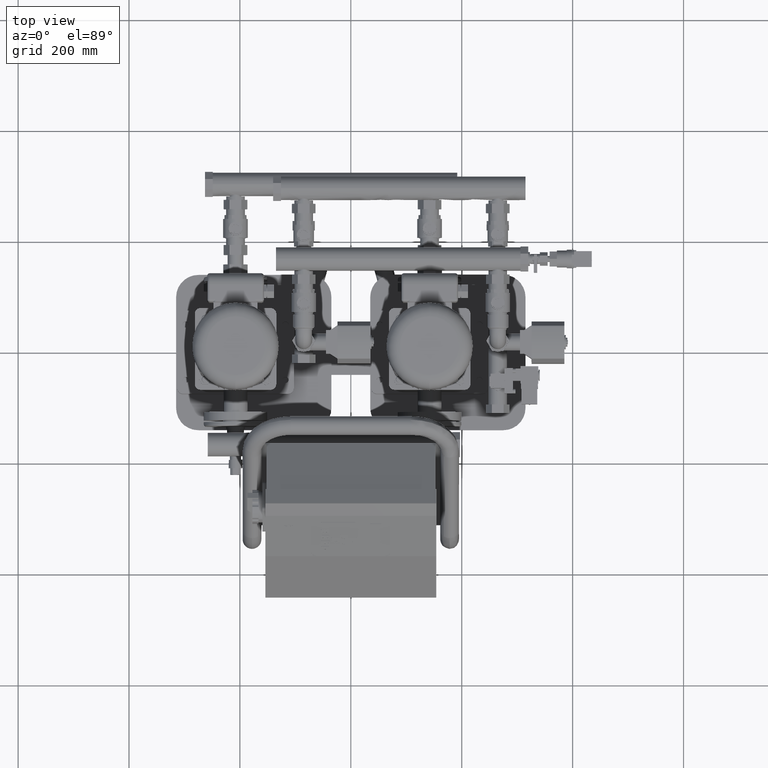
[diagram: clean part render]
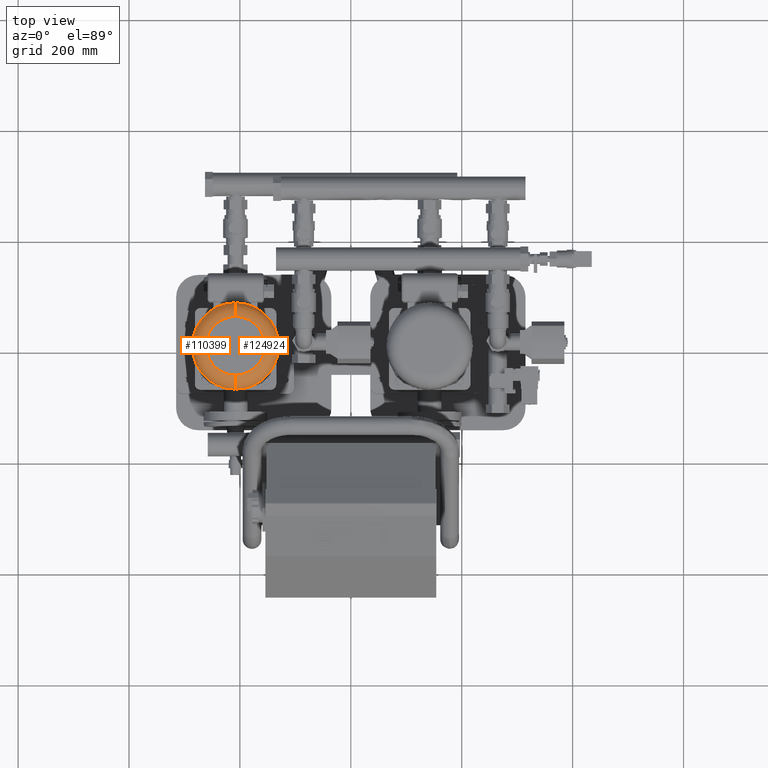
[diagram: same view with one multi-face feature highlighted, each face labeled with its STEP entity id]
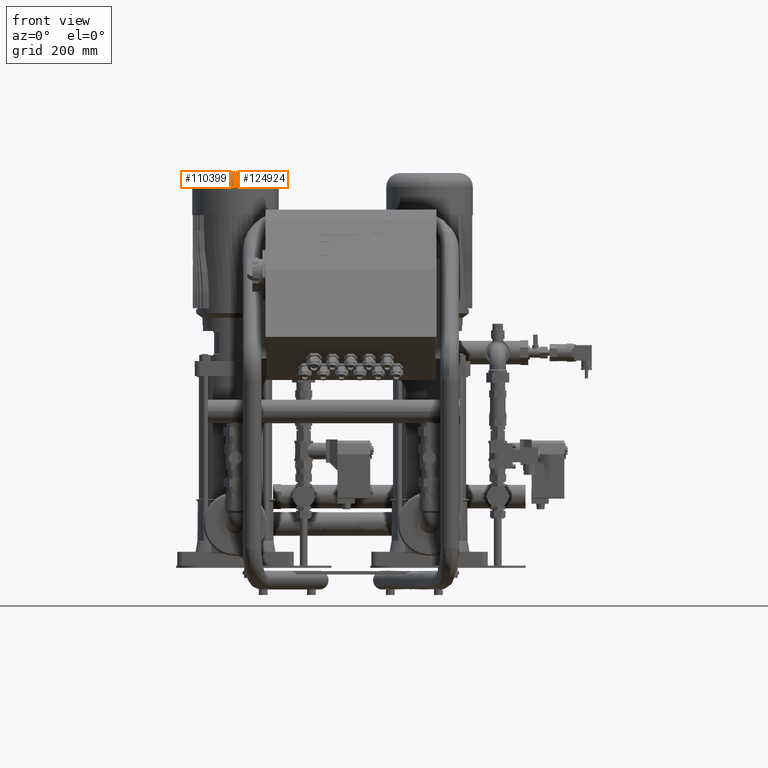
[diagram: same view with one multi-face feature highlighted, each face labeled with its STEP entity id]
A machine part, top view. The highlighted faces form ONE feature: a constant-radius fillet chain: 2 tangent blend faces with common blend radius 25 mm. The faces share edges in the B-rep.
A second angle (front view) of the same feature is appended — it is thin or edge-on in the first view.
Their STEP definitions:
[1] entity #110399 (Torus):
#110302=CARTESIAN_POINT('',(-285.999999999999940,-3.534201E-014,736.0));
#110303=VERTEX_POINT('',#110302);
#110312=CARTESIAN_POINT('',(-207.999999999999940,77.999999999999943,736.0));
#110313=VERTEX_POINT('',#110312);
#110314=CARTESIAN_POINT('',(-207.999999999999940,-5.444650E-014,736.0));
#110315=DIRECTION('',(0.0,0.0,1.0));
#110316=DIRECTION('',(1.0,0.0,0.0));
#110317=AXIS2_PLACEMENT_3D('',#110314,#110315,#110316);
#110318=CIRCLE('',#110317,78.0);
#110319=EDGE_CURVE('',#110313,#110303,#110318,.T.);
#110348=CARTESIAN_POINT('',(-207.999999999999940,-5.444650E-014,736.0));
#110349=DIRECTION('',(-4.499279E-032,-1.836970E-016,1.0));
#110350=DIRECTION('',(0.0,-1.0,0.0));
#110351=AXIS2_PLACEMENT_3D('',#110348,#110349,#110350);
#110352=TOROIDAL_SURFACE('',#110351,53.000000000000007,25.0);
#110353=CARTESIAN_POINT('',(-208.0,-53.000000000000064,761.0));
#110354=VERTEX_POINT('',#110353);
#110355=CARTESIAN_POINT('',(-208.0,-78.000000000000057,736.0));
#110356=VERTEX_POINT('',#110355);
#110357=CARTESIAN_POINT('',(-207.999999999999970,-53.000000000000064,736.0));
#110358=DIRECTION('',(1.0,0.0,0.0));
#110359=DIRECTION('',(0.0,-1.0,0.0));
#110360=AXIS2_PLACEMENT_3D('',#110357,#110358,#110359);
#110361=CIRCLE('',#110360,25.0);
#110362=EDGE_CURVE('',#110354,#110356,#110361,.T.);
#110363=ORIENTED_EDGE('',*,*,#110362,.F.);
#110364=CARTESIAN_POINT('',(-260.999999999999940,-3.307684E-014,761.0));
#110365=VERTEX_POINT('',#110364);
#110366=CARTESIAN_POINT('',(-207.999999999999940,-5.903892E-014,761.0));
#110367=DIRECTION('',(0.0,0.0,-1.0));
#110368=DIRECTION('',(1.0,0.0,0.0));
#110369=AXIS2_PLACEMENT_3D('',#110366,#110367,#110368);
#110370=CIRCLE('',#110369,53.000000000000007);
#110371=EDGE_CURVE('',#110354,#110365,#110370,.T.);
#110372=ORIENTED_EDGE('',*,*,#110371,.T.);
#110373=CARTESIAN_POINT('',(-207.999999999999940,52.999999999999950,761.0));
#110374=VERTEX_POINT('',#110373);
#110375=CARTESIAN_POINT('',(-207.999999999999940,-5.903892E-014,761.0));
#110376=DIRECTION('',(0.0,0.0,-1.0));
#110377=DIRECTION('',(1.0,0.0,0.0));
#110378=AXIS2_PLACEMENT_3D('',#110375,#110376,#110377);
#110379=CIRCLE('',#110378,53.000000000000007);
#110380=EDGE_CURVE('',#110365,#110374,#110379,.T.);
#110381=ORIENTED_EDGE('',*,*,#110380,.T.);
#110382=CARTESIAN_POINT('',(-207.999999999999940,52.999999999999950,736.0));
#110383=DIRECTION('',(-1.0,0.0,0.0));
#110384=DIRECTION('',(0.0,1.0,0.0));
#110385=AXIS2_PLACEMENT_3D('',#110382,#110383,#110384);
#110386=CIRCLE('',#110385,25.0);
#110387=EDGE_CURVE('',#110374,#110313,#110386,.T.);
#110388=ORIENTED_EDGE('',*,*,#110387,.T.);
#110389=ORIENTED_EDGE('',*,*,#110319,.T.);
#110390=CARTESIAN_POINT('',(-207.999999999999940,-5.444650E-014,736.0));
#110391=DIRECTION('',(0.0,0.0,1.0));
#110392=DIRECTION('',(1.0,0.0,0.0));
#110393=AXIS2_PLACEMENT_3D('',#110390,#110391,#110392);
#110394=CIRCLE('',#110393,78.0);
#110395=EDGE_CURVE('',#110303,#110356,#110394,.T.);
#110396=ORIENTED_EDGE('',*,*,#110395,.T.);
#110397=EDGE_LOOP('',(#110363,#110372,#110381,#110388,#110389,#110396));
#110398=FACE_OUTER_BOUND('',#110397,.T.);
#110399=ADVANCED_FACE('',(#110398),#110352,.T.);
[2] entity #124924 (Torus):
#110312=CARTESIAN_POINT('',(-207.999999999999940,77.999999999999943,736.0));
#110313=VERTEX_POINT('',#110312);
#110321=CARTESIAN_POINT('',(-129.999999999999940,-6.399906E-014,736.0));
#110322=VERTEX_POINT('',#110321);
#110323=CARTESIAN_POINT('',(-207.999999999999940,-5.444650E-014,736.0));
#110324=DIRECTION('',(0.0,0.0,1.0));
#110325=DIRECTION('',(1.0,0.0,0.0));
#110326=AXIS2_PLACEMENT_3D('',#110323,#110324,#110325);
#110327=CIRCLE('',#110326,78.0);
#110328=EDGE_CURVE('',#110322,#110313,#110327,.T.);
#110353=CARTESIAN_POINT('',(-208.0,-53.000000000000064,761.0));
#110354=VERTEX_POINT('',#110353);
#110355=CARTESIAN_POINT('',(-208.0,-78.000000000000057,736.0));
#110356=VERTEX_POINT('',#110355);
#110357=CARTESIAN_POINT('',(-207.999999999999970,-53.000000000000064,736.0));
#110358=DIRECTION('',(1.0,0.0,0.0));
#110359=DIRECTION('',(0.0,-1.0,0.0));
#110360=AXIS2_PLACEMENT_3D('',#110357,#110358,#110359);
#110361=CIRCLE('',#110360,25.0);
#110362=EDGE_CURVE('',#110354,#110356,#110361,.T.);
#110373=CARTESIAN_POINT('',(-207.999999999999940,52.999999999999950,761.0));
#110374=VERTEX_POINT('',#110373);
#110382=CARTESIAN_POINT('',(-207.999999999999940,52.999999999999950,736.0));
#110383=DIRECTION('',(-1.0,0.0,0.0));
#110384=DIRECTION('',(0.0,1.0,0.0));
#110385=AXIS2_PLACEMENT_3D('',#110382,#110383,#110384);
#110386=CIRCLE('',#110385,25.0);
#110387=EDGE_CURVE('',#110374,#110313,#110386,.T.);
#124900=CARTESIAN_POINT('',(-207.999999999999940,-5.444650E-014,736.0));
#124901=DIRECTION('',(-4.499279E-032,-1.836970E-016,1.0));
#124902=DIRECTION('',(0.0,-1.0,0.0));
#124903=AXIS2_PLACEMENT_3D('',#124900,#124901,#124902);
#124904=TOROIDAL_SURFACE('',#124903,53.000000000000007,25.0);
#124905=ORIENTED_EDGE('',*,*,#110362,.T.);
#124906=CARTESIAN_POINT('',(-207.999999999999940,-5.444650E-014,736.0));
#124907=DIRECTION('',(0.0,0.0,1.0));
#124908=DIRECTION('',(1.0,0.0,0.0));
#124909=AXIS2_PLACEMENT_3D('',#124906,#124907,#124908);
#124910=CIRCLE('',#124909,78.0);
#124911=EDGE_CURVE('',#110356,#110322,#124910,.T.);
#124912=ORIENTED_EDGE('',*,*,#124911,.T.);
#124913=ORIENTED_EDGE('',*,*,#110328,.T.);
#124914=ORIENTED_EDGE('',*,*,#110387,.F.);
#124915=CARTESIAN_POINT('',(-207.999999999999940,-5.903892E-014,761.0));
#124916=DIRECTION('',(0.0,0.0,-1.0));
#124917=DIRECTION('',(1.0,0.0,0.0));
#124918=AXIS2_PLACEMENT_3D('',#124915,#124916,#124917);
#124919=CIRCLE('',#124918,53.000000000000007);
#124920=EDGE_CURVE('',#110374,#110354,#124919,.T.);
#124921=ORIENTED_EDGE('',*,*,#124920,.T.);
#124922=EDGE_LOOP('',(#124905,#124912,#124913,#124914,#124921));
#124923=FACE_OUTER_BOUND('',#124922,.T.);
#124924=ADVANCED_FACE('',(#124923),#124904,.T.);